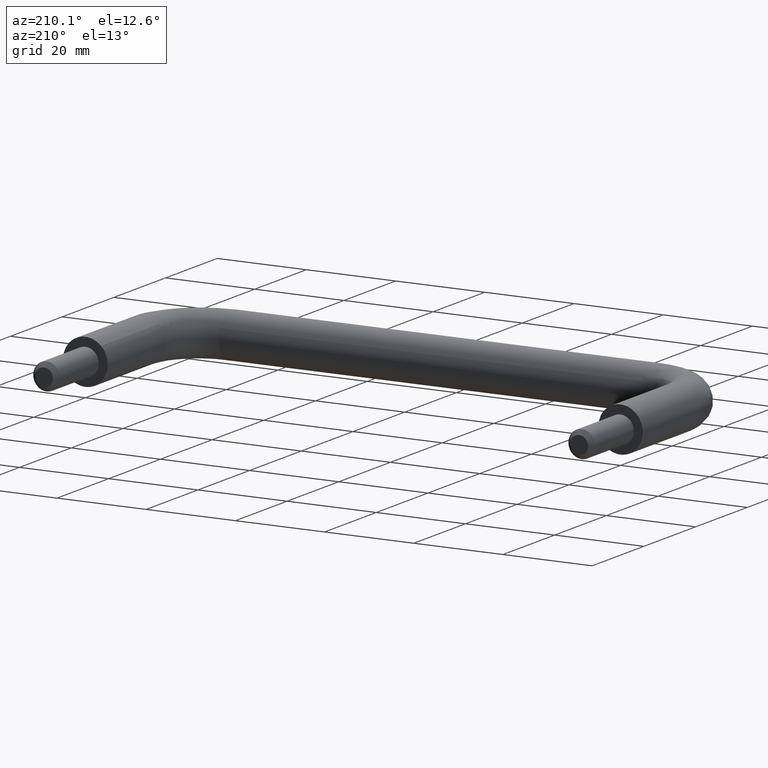
[diagram: clean part render]
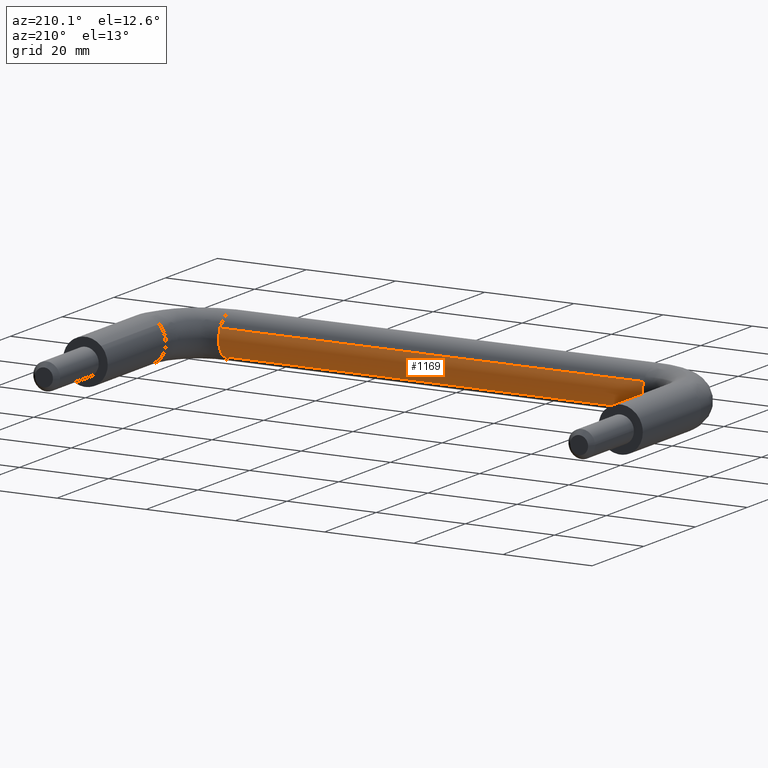
[diagram: same view with one face highlighted and labeled with its STEP entity id]
A machine part, auxiliary view. The second image highlights one B-rep face of the part: STEP entity #1169.
In plain terms, the highlighted face is a freeform B-spline surface patch.
Its self-contained STEP definition (entity closure, byte-faithful):
#950=CARTESIAN_POINT('',(107.500000000000000,-30.521972536837890,2.224245948443190));
#951=VERTEX_POINT('',#950);
#969=CARTESIAN_POINT('',(12.499999999949400,-30.521972536863860,2.224245948429610));
#970=VERTEX_POINT('',#969);
#971=CARTESIAN_POINT('',(12.499999999949400,-30.521972536863860,2.224245948429610));
#972=CARTESIAN_POINT('',(107.500000000000000,-30.521972536837890,2.224245948443190));
#973=QUASI_UNIFORM_CURVE('',1,(#971,#972),.UNSPECIFIED.,.F.,.U.);
#974=EDGE_CURVE('',#970,#951,#973,.T.);
#1023=CARTESIAN_POINT('',(12.500000000000000,-31.558228442135000,-3.626873108266699));
#1024=VERTEX_POINT('',#1023);
#1040=CARTESIAN_POINT('',(107.500000000324110,-31.558227913072550,-3.626872605960986));
#1041=VERTEX_POINT('',#1040);
#1042=CARTESIAN_POINT('',(12.500000000000000,-31.558228442135000,-3.626873108266699));
#1043=CARTESIAN_POINT('',(107.500000000324110,-31.558227913072550,-3.626872605960986));
#1044=QUASI_UNIFORM_CURVE('',1,(#1042,#1043),.UNSPECIFIED.,.F.,.U.);
#1045=EDGE_CURVE('',#1024,#1041,#1044,.T.);
#1095=CARTESIAN_POINT('',(10.124999941214480,-31.558227121531232,-3.626871855061437));
#1096=CARTESIAN_POINT('',(10.124999941214483,-28.878708249008774,-1.084103389193821));
#1097=CARTESIAN_POINT('',(10.124999941214483,-30.521972536820851,2.224245948408881));
#1098=CARTESIAN_POINT('',(109.934375002968100,-31.558227121531232,-3.626871855061437));
#1099=CARTESIAN_POINT('',(109.934375002968070,-28.878708249008760,-1.084103389193821));
#1100=CARTESIAN_POINT('',(109.934375002968050,-30.521972536820840,2.224245948408881));
#1108=(BOUNDED_SURFACE()B_SPLINE_SURFACE(2,1,((#1095,#1098),(#1096,#1099),(#1097,#1100)),.UNSPECIFIED.,.F.,.F.,.U.)B_SPLINE_SURFACE_WITH_KNOTS((3,3),(2,2),(0.0,6.582243619433232),(0.0,99.809375061753585),.UNSPECIFIED.)GEOMETRIC_REPRESENTATION_ITEM()RATIONAL_B_SPLINE_SURFACE(((1.0,1.0),(0.765685424949238,0.765685424949238),(0.906274169979695,0.906274169979695)))REPRESENTATION_ITEM('')SURFACE());
#1109=CARTESIAN_POINT('',(107.500000000000000,-30.0,0.0));
#1110=VERTEX_POINT('',#1109);
#1111=CARTESIAN_POINT('',(107.500000000000000,-30.0,0.0));
#1112=CARTESIAN_POINT('',(107.499999999999990,-30.000000000000011,1.173369647390433));
#1113=CARTESIAN_POINT('',(107.500000000000000,-30.521972536837890,2.224245948443190));
#1121=(BOUNDED_CURVE()B_SPLINE_CURVE(2,(#1111,#1112,#1113),.UNSPECIFIED.,.F.,.U.)B_SPLINE_CURVE_WITH_KNOTS((3,3),(0.500000000000000,0.575619190624772),.UNSPECIFIED.)CURVE()GEOMETRIC_REPRESENTATION_ITEM()RATIONAL_B_SPLINE_CURVE((1.0,0.911406607415370,0.876408099966359))REPRESENTATION_ITEM(''));
#1122=EDGE_CURVE('',#1110,#951,#1121,.T.);
#1123=ORIENTED_EDGE('',*,*,#1122,.F.);
#1124=CARTESIAN_POINT('',(107.500000000324090,-31.558227913072553,-3.626872605960986));
#1125=CARTESIAN_POINT('',(107.500000000000000,-30.000000000000007,-2.148170175827158));
#1126=CARTESIAN_POINT('',(107.500000000000000,-30.0,0.0));
#1134=(BOUNDED_CURVE()B_SPLINE_CURVE(2,(#1124,#1125,#1126),.UNSPECIFIED.,.F.,.U.)B_SPLINE_CURVE_WITH_KNOTS((3,3),(0.371049493739702,0.500000000000000),.UNSPECIFIED.)CURVE()GEOMETRIC_REPRESENTATION_ITEM()RATIONAL_B_SPLINE_CURVE((0.853699663807202,0.848925084615189,1.0))REPRESENTATION_ITEM(''));
#1135=EDGE_CURVE('',#1041,#1110,#1134,.T.);
#1136=ORIENTED_EDGE('',*,*,#1135,.F.);
#1137=ORIENTED_EDGE('',*,*,#1045,.F.);
#1138=CARTESIAN_POINT('',(12.500000000000000,-30.0,0.0));
#1139=VERTEX_POINT('',#1138);
#1140=CARTESIAN_POINT('',(12.500000000000000,-31.558228442135000,-3.626873108266699));
#1141=CARTESIAN_POINT('',(12.500000000000002,-30.000000000000007,-2.148170608151419));
#1142=CARTESIAN_POINT('',(12.500000000000000,-30.0,0.0));
#1150=(BOUNDED_CURVE()B_SPLINE_CURVE(2,(#1140,#1141,#1142),.UNSPECIFIED.,.F.,.U.)B_SPLINE_CURVE_WITH_KNOTS((3,3),(0.371049471708747,0.500000000000000),.UNSPECIFIED.)CURVE()GEOMETRIC_REPRESENTATION_ITEM()RATIONAL_B_SPLINE_CURVE((0.853699665438662,0.848925058804319,1.0))REPRESENTATION_ITEM(''));
#1151=EDGE_CURVE('',#1024,#1139,#1150,.T.);
#1152=ORIENTED_EDGE('',*,*,#1151,.T.);
#1153=CARTESIAN_POINT('',(12.500000000000000,-30.0,0.0));
#1154=CARTESIAN_POINT('',(12.499999999999991,-30.0,1.173369647373951));
#1155=CARTESIAN_POINT('',(12.499999999949392,-30.521972536863863,2.224245948429611));
#1163=(BOUNDED_CURVE()B_SPLINE_CURVE(2,(#1153,#1154,#1155),.UNSPECIFIED.,.F.,.U.)B_SPLINE_CURVE_WITH_KNOTS((3,3),(0.500000000000000,0.575619190623804),.UNSPECIFIED.)CURVE()GEOMETRIC_REPRESENTATION_ITEM()RATIONAL_B_SPLINE_CURVE((1.0,0.911406607416505,0.876408099967255))REPRESENTATION_ITEM(''));
#1164=EDGE_CURVE('',#1139,#970,#1163,.T.);
#1165=ORIENTED_EDGE('',*,*,#1164,.T.);
#1166=ORIENTED_EDGE('',*,*,#974,.T.);
#1167=EDGE_LOOP('',(#1123,#1136,#1137,#1152,#1165,#1166));
#1168=FACE_OUTER_BOUND('',#1167,.T.);
#1169=ADVANCED_FACE('',(#1168),#1108,.T.);